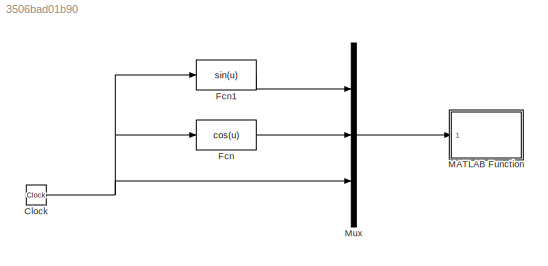
MODEL slx_3506bad01b90
KIND model
CONFIG AbsTol = auto
CONFIG FixedStep = auto
CONFIG MaxStep = auto
CONFIG MinStep = auto
CONFIG RelTol = 1e-3
CONFIG SampleTimeConstraint = Unconstrained
CONFIG Solver = VariableStepAuto
CONFIG SolverMode = Auto
CONFIG SolverName = VariableStepAuto
CONFIG StartTime = 0.0
CONFIG StopTime = 10.0
BLOCK [Clock] Clock
BLOCK [Fcn] Fcn
  Expr = cos(u)
BLOCK [Fcn] Fcn1
  Expr = sin(u)
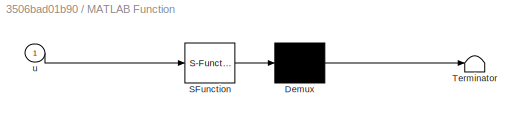
BLOCK [SubSystem] MATLAB Function
  ErrorFcn = Stateflow.Translate.translate
  PermitHierarchicalResolution = ExplicitOnly
  Ports = [1]
  RequestExecContextInheritance = off
  SFBlockType = MATLAB Function
  TreatAsAtomicUnit = on
  Variant = off
BLOCK [Demux] MATLAB Function/ Demux 
  Outputs = 1
  Ports = [1, 1]
BLOCK [S-Function] MATLAB Function/ SFunction 
  EnableBusSupport = on
  FunctionName = sf_sfun
  PortCounts = [1 1]
  Ports = [1, 1]
  SFunctionDeploymentMode = off
  Tag = Stateflow S-Function MatlabFunctionexp1 2
BLOCK [Terminator] MATLAB Function/ Terminator 
BLOCK [Inport] MATLAB Function/u
  IconDisplay = Port number
BLOCK [Mux] Mux
  DisplayOption = bar
  Inputs = 3
  Ports = [3, 1]
NET Clock:1 -> Fcn1:1, Fcn:1, Mux:3
LINE Fcn1:1 -> Mux:1
LINE Fcn:1 -> Mux:2
LINE Mux:1 -> MATLAB Function:1
note: NET lines group one-source signal fan-out (src -> all destinations, sorted); 1:1 wires keep LINE
CHART MATLAB Function states=1 transitions=1
  STATE_LABEL 'eML_blk_kernel()'
  STATE_LABEL "SCRIPT:\nfunction scope_3d(u)\n%#codegen\neml.extrinsic('plot3','scatter3','close','delete');\nlen=length(u);\npersistent data\nif isempty(data)\n    data=zeros(3,100000);%初始化一个足够大的的存储空间\nend\npersistent n             % count the input sample number\n if isempty(n)\n     n=1;\n else\n     n=n+1;\n end\n data(:,n)=u;\n\n persistent h \n\n if isempty(h)\n     h=plot3(data(1,:),data(2,:),data(3,:),'o'); \n     grid on\n e...<+123ch>"
